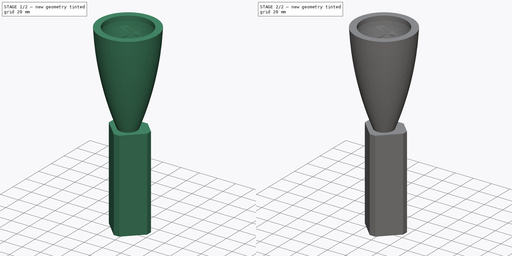
[diagram: build sequence overview — one tinted view per stage of 2, left to right]
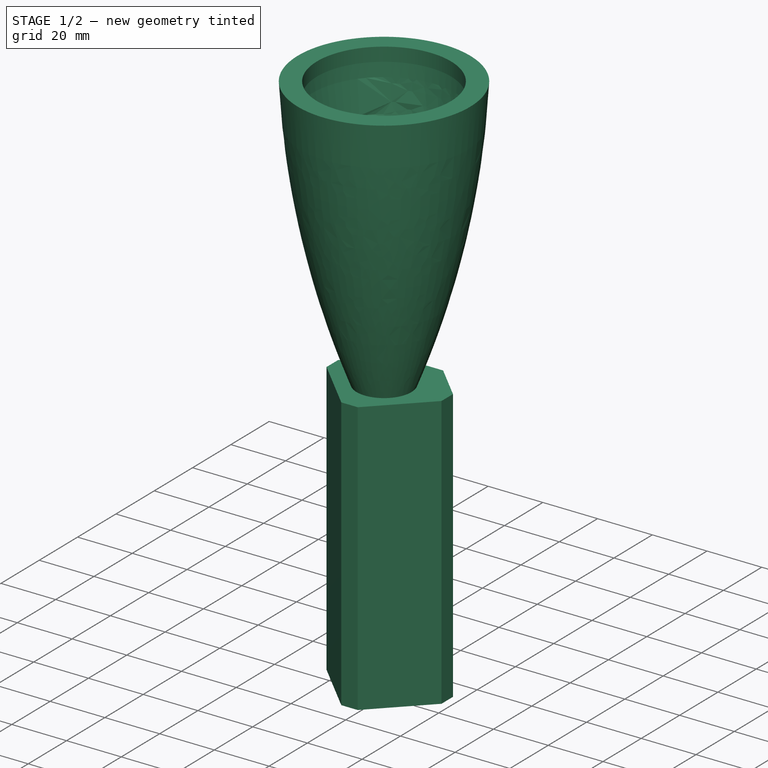
[diagram: stage 1 of 2 — iso view after this stage's code; geometry added in this stage tinted green]
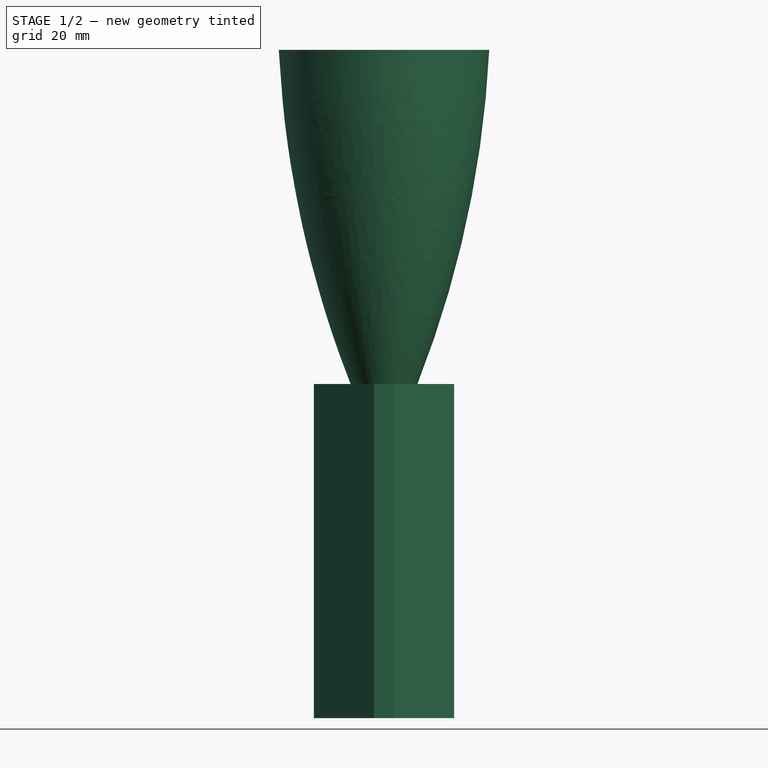
[diagram: stage 1 of 2 — front view after this stage's code; geometry added in this stage tinted green]
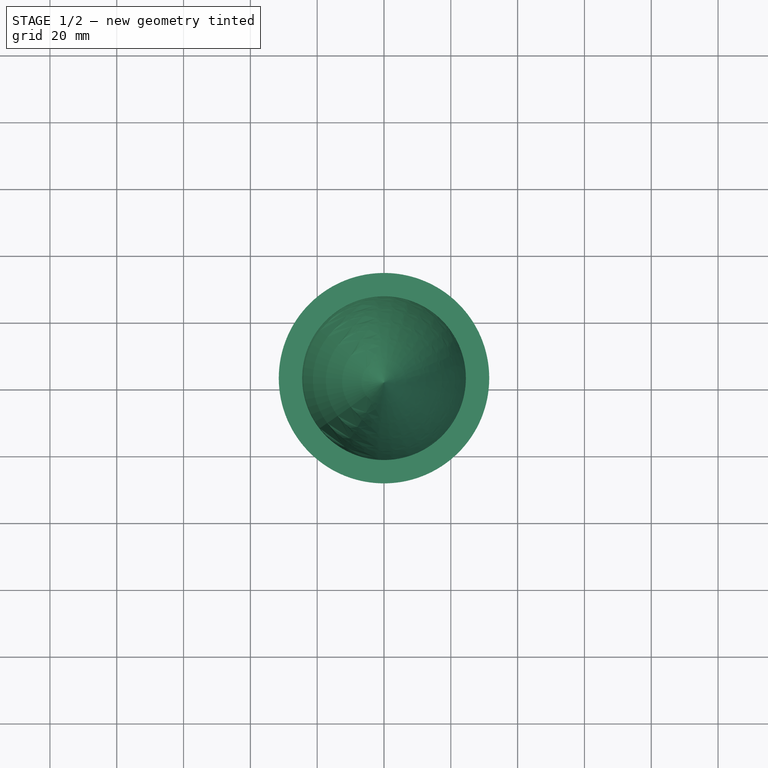
[diagram: stage 1 of 2 — top view after this stage's code; geometry added in this stage tinted green]
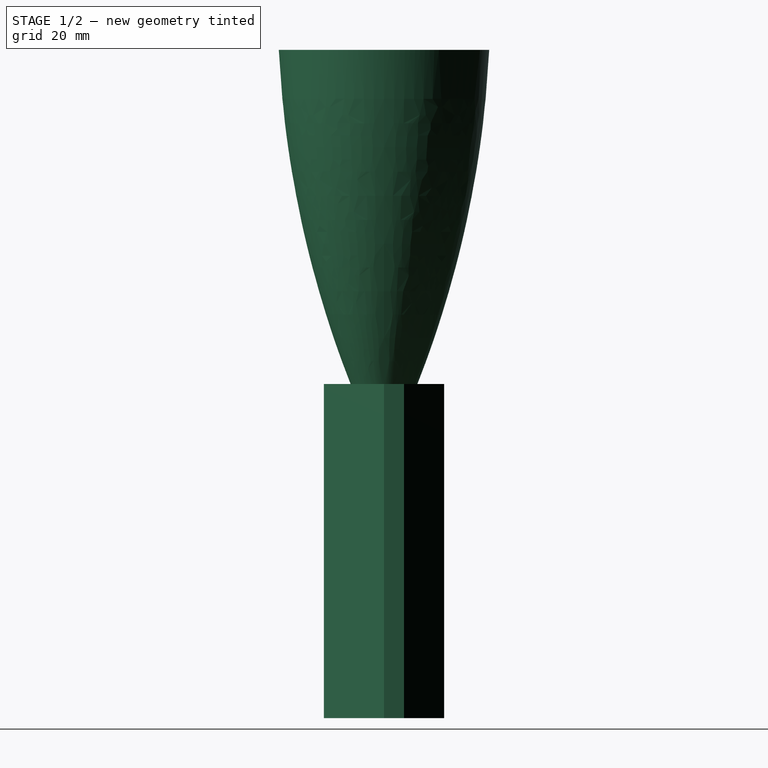
[diagram: stage 1 of 2 — right view after this stage's code; geometry added in this stage tinted green]
FCSTD DOCUMENT  (FreeCAD 0.18.4R)
Label: part15
License: All rights reserved
LicenseURL: http://en.wikipedia.org/wiki/All_rights_reserved
objects: Sketcher::SketchObject×3, PartDesign::Revolution×1, PartDesign::Pad×1, PartDesign::Hole×1, PartDesign::Body×1
note: 10 computed .brp shape members not serialized (recipe doc carries the construction recipe); baked Part::Feature solids carry a one-line shape summary decoded from their .brp

FEATURE [Sketcher::SketchObject] Sketch
  MapMode = 5
  Placement = pos=(0,0,0) rot=(1,0,0;1.5708rad)
  Support = -> [XZ_Plane]
  sketch-geometry (9):
    g0: ArcOfCircle CenterX=-284.838 CenterY=115.701 CenterZ=0 NormalX=0 NormalY=0 NormalZ=1 AngleXU=0 Radius=316.728 StartAngle=5.90923 EndAngle=6.23359
    g1: ArcOfCircle CenterX=-98.1631 CenterY=103.289 CenterZ=0 NormalX=0 NormalY=0 NormalZ=1 AngleXU=0 Radius=124.938 StartAngle=5.6162 EndAngle=6.21679
    g2: LineSegment StartX=-1.42e-14 StartY=26 StartZ=0 EndX=-1.42e-14 EndY=0 EndZ=0
    g3: LineSegment StartX=-1.42e-14 StartY=0 StartZ=0 EndX=10 EndY=0 EndZ=0
    g4: LineSegment StartX=31.5 StartY=100 StartZ=0 EndX=24.5 EndY=100 EndZ=0
    g5: LineSegment StartX=24.5 StartY=100 StartZ=0 EndX=24.5 EndY=95 EndZ=0
    g6: LineSegment StartX=24.5 StartY=95 StartZ=0 EndX=26.5 EndY=95 EndZ=0
    g7: GeomPoint X=25 Y=50 Z=0
    g8: LineSegment [constr] StartX=26.5 StartY=95 StartZ=0 EndX=31.1916 EndY=94.688 EndZ=0
  constraints (27):
    c: Vertical(g2)
    c: Coincident(g2,g3)
    c: Horizontal(g3)
    c: Horizontal(g4)
    c: Coincident(g4,g5)
    c: Coincident(g0,g4)
    c: Coincident(g0,g3)
    c: Coincident(g6,g1)
    c: Coincident(g1,g2)
    c: Vertical(g5)
    c: Horizontal(g6)
    c: Coincident(g5,g6)
    c: DistanceX(g3,g3) = 10
    c: DistanceY(g0,g0) = 100
    c: Coincident(g-1,g2)
    c: DistanceX(g2,g0) = 31.5
    c: DistanceX(g4,g4) = 7
    c: DistanceY(g5,g5) = 5
    c: DistanceY(g2,g2) = 26
    c: PointOnObject(g7,g0)
    c: DistanceX(g2,g7) = 25
    c: DistanceY(g2,g7) = 50
    c: DistanceX(g6,g6) = 2
    c: Coincident(g8,g1)
    c: Perpendicular(g1,g8)
    c: Perpendicular(g0,g8)
    c: PointOnObject(g8,g0)
FEATURE [PartDesign::Revolution] Revolution
  Angle = 360
  Axis = (-3e-16,3e-16,1)
  Base = (0,0,0)
  Placement = pos=(0,0,0) rot=(1,0,0;1.5708rad)
  Profile = -> Sketch
  ReferenceAxis = -> Z_Axis
  Reversed = true
FEATURE [Sketcher::SketchObject] Sketch001
  MapMode = 5
  Placement = pos=(0,0,0) rot=(1,0,0;3.14159rad)
  Support = -> [Revolution]
  sketch-geometry (8):
    g0: LineSegment StartX=-3 StartY=18 StartZ=0 EndX=-21 EndY=0 EndZ=0
    g1: LineSegment StartX=-21 StartY=0 StartZ=0 EndX=-21 EndY=-6 EndZ=0
    g2: LineSegment StartX=-21 StartY=-6 StartZ=0 EndX=-9 EndY=-18 EndZ=0
    g3: LineSegment StartX=-9 StartY=-18 StartZ=0 EndX=9 EndY=-18 EndZ=0
    g4: LineSegment StartX=9 StartY=-18 StartZ=0 EndX=21 EndY=-6 EndZ=0
    g5: LineSegment StartX=21 StartY=-6 StartZ=0 EndX=21 EndY=0 EndZ=0
    g6: LineSegment StartX=21 StartY=0 StartZ=0 EndX=3 EndY=18 EndZ=0
    g7: LineSegment StartX=3 StartY=18 StartZ=0 EndX=-3 EndY=18 EndZ=0
  constraints (21):
    c: Coincident(g0,g1)
    c: Coincident(g1,g2)
    c: Coincident(g2,g3)
    c: Coincident(g3,g4)
    c: Coincident(g4,g5)
    c: Vertical(g5)
    c: Coincident(g5,g6)
    c: Coincident(g6,g7)
    c: Coincident(g7,g0)
    c: Symmetric(g0,g6,g-2)
    c: Symmetric(g0,g5,g-2)
    c: Symmetric(g1,g4,g-2)
    c: Symmetric(g2,g3,g-2)
    c: PointOnObject(g5,g-1)
    c: Equal(g7,g1)
    c: Equal(g7,g5)
    c: Angle(g0,g7) = 2.35619
    c: Angle(g3,g2) = 2.35619
    c: DistanceX(g3,g3) = 18
    c: DistanceX(g0,g5) = 42
    c: DistanceY(g5,g5) = 6
FEATURE [PartDesign::Pad] Pad
  BaseFeature = -> Revolution
  Length = 100
  Length2 = 100
  Placement = pos=(0,0,0) rot=(1,0,0;1.5708rad)
  Profile = -> Sketch001
  Type = 0
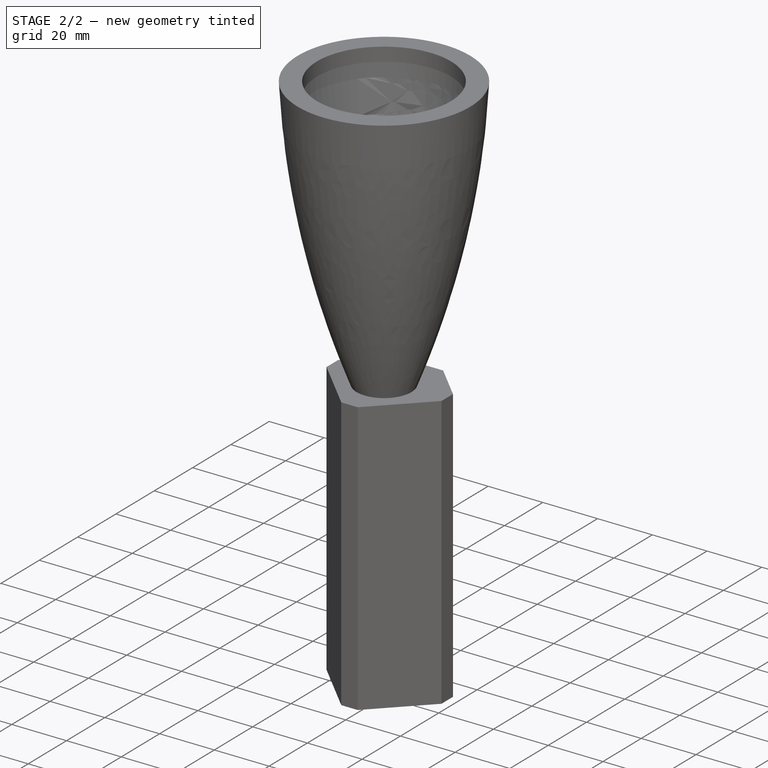
[diagram: stage 2 of 2 — iso view after this stage's code; geometry added in this stage tinted green]
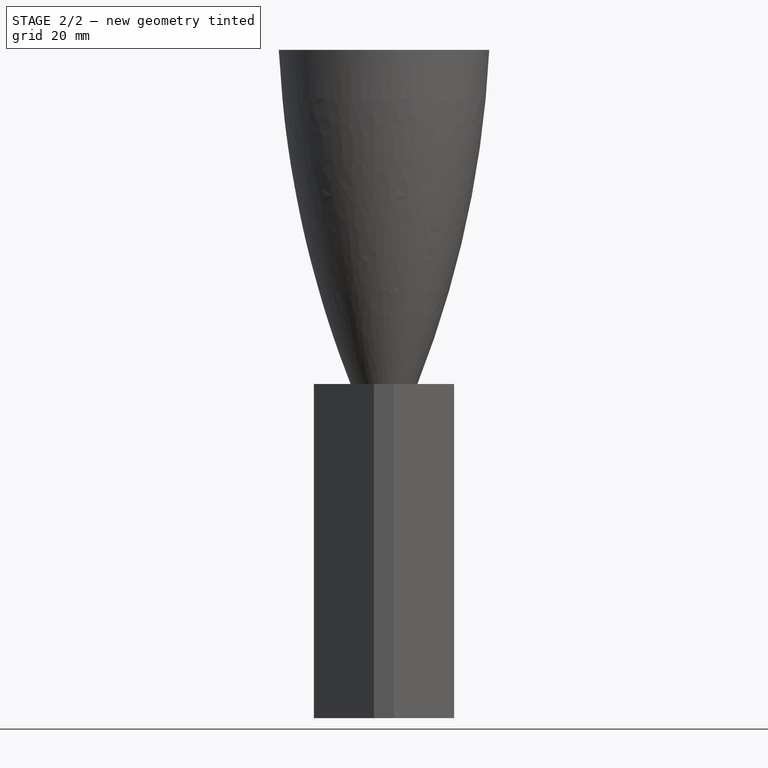
[diagram: stage 2 of 2 — front view after this stage's code; geometry added in this stage tinted green]
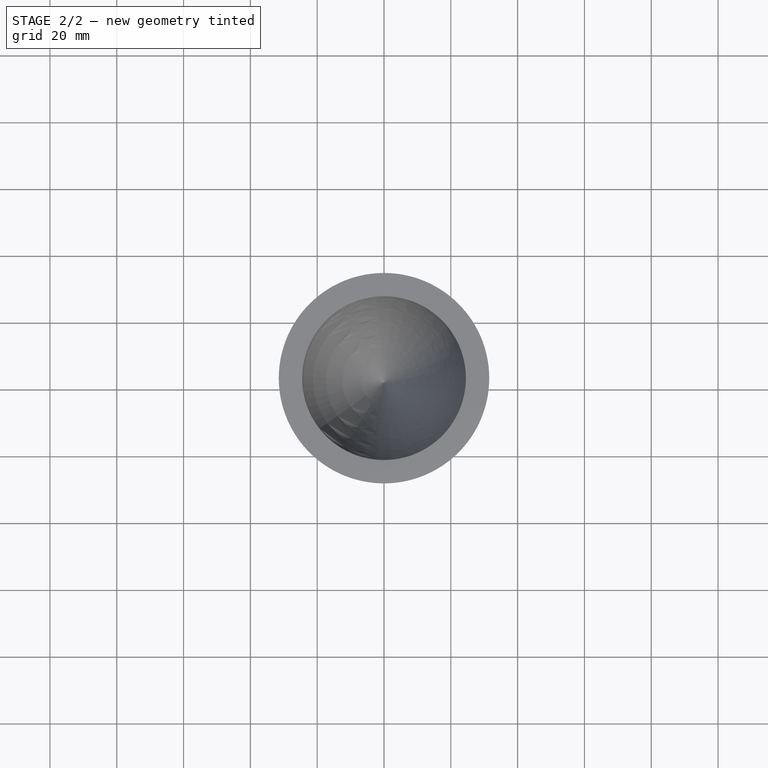
[diagram: stage 2 of 2 — top view after this stage's code; geometry added in this stage tinted green]
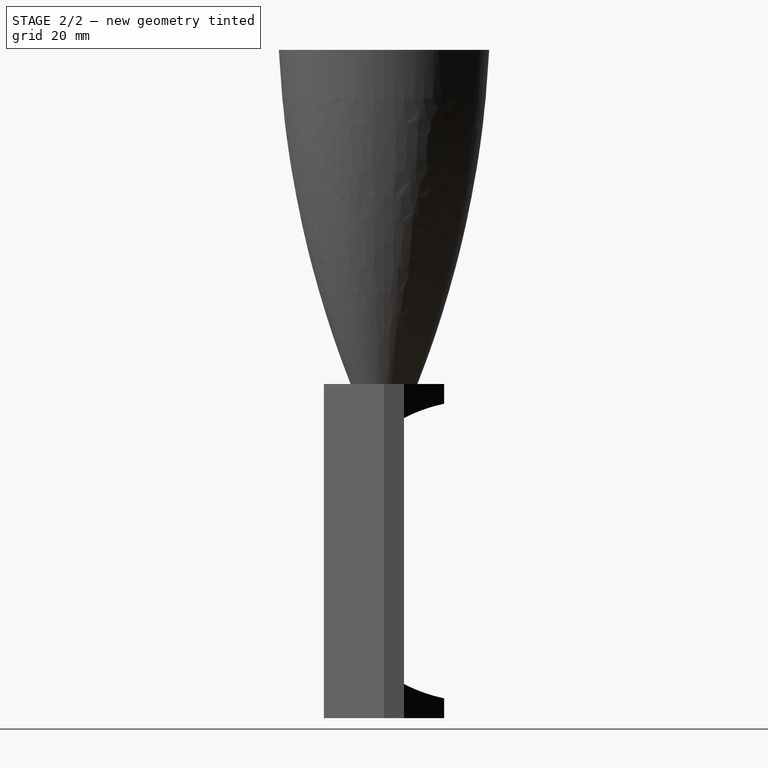
[diagram: stage 2 of 2 — right view after this stage's code; geometry added in this stage tinted green]
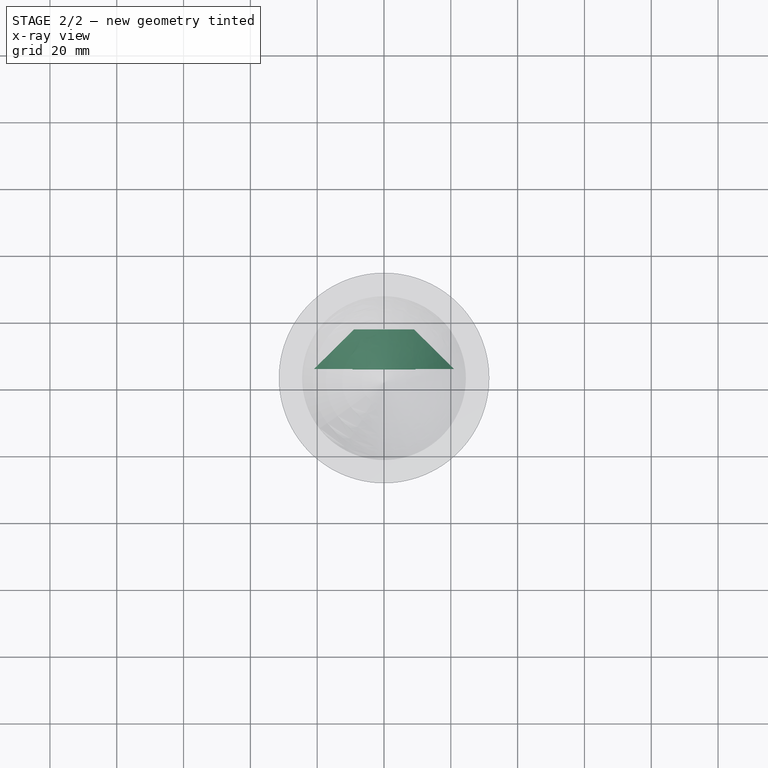
[diagram: stage 2 of 2 — x-ray composite at the top view; earlier geometry ghosted, this stage's added geometry solid]
FEATURE [Sketcher::SketchObject] Sketch002
  MapMode = 5
  Placement = pos=(0,18,-1.61e-14) rot=(-1,0,0;1.5708rad)
  Support = -> [Pad]
  sketch-geometry (1):
    g0: Circle CenterX=0 CenterY=50 CenterZ=0 NormalX=0 NormalY=0 NormalZ=1 AngleXU=0 Radius=11.8086
  constraints (2):
    c: PointOnObject(g0,g-2)
    c: DistanceY(g-1,g0) = 50
FEATURE [PartDesign::Hole] Hole
  BaseFeature = -> Pad
  Depth = 12
  DepthType = 0
  Diameter = 90
  DrillPoint = 0
  DrillPointAngle = 118
  HoleCutCountersinkAngle = 90
  HoleCutDepth = 0
  HoleCutDiameter = 0
  HoleCutType = 0
  ModelActualThread = false
  Placement = pos=(0,0,0) rot=(1,0,0;1.5708rad)
  Profile = -> Sketch002
  Tapered = false
  TaperedAngle = 90
  ThreadAngle = 0
  ThreadClass = 0
  ThreadCutOffInner = 0
  ThreadCutOffOuter = 0
  ThreadDirection = 0
  ThreadFit = 0
  ThreadPitch = 0
  ThreadSize = 0
  ThreadType = 0
  Threaded = false
FEATURE [PartDesign::Body] Body
  Group = -> [Sketch,Revolution,Sketch001,Pad,Sketch002,Hole]
  Origin = -> Origin
  Placement = pos=(0,0,-26) rot=(0,0,1;0rad)
  Tip = -> Hole
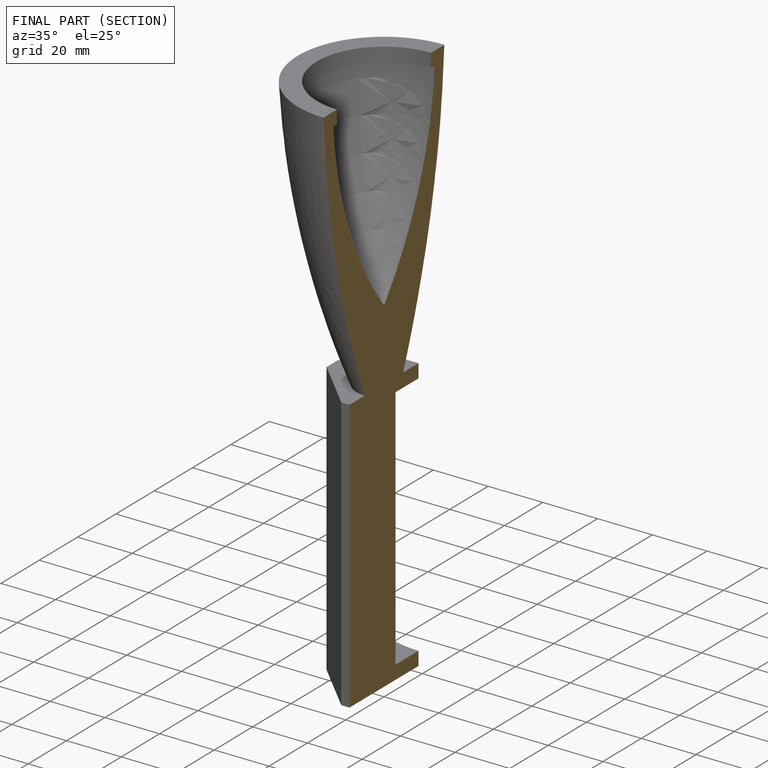
[diagram: finished part — half-section view (interior)]
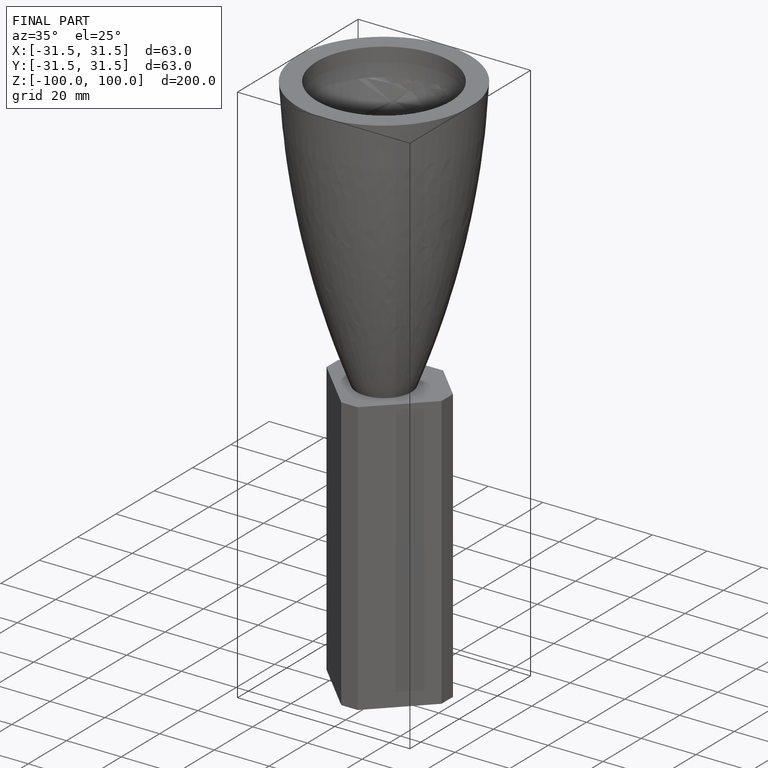
[diagram: finished part — iso view with bounding-box wireframe]
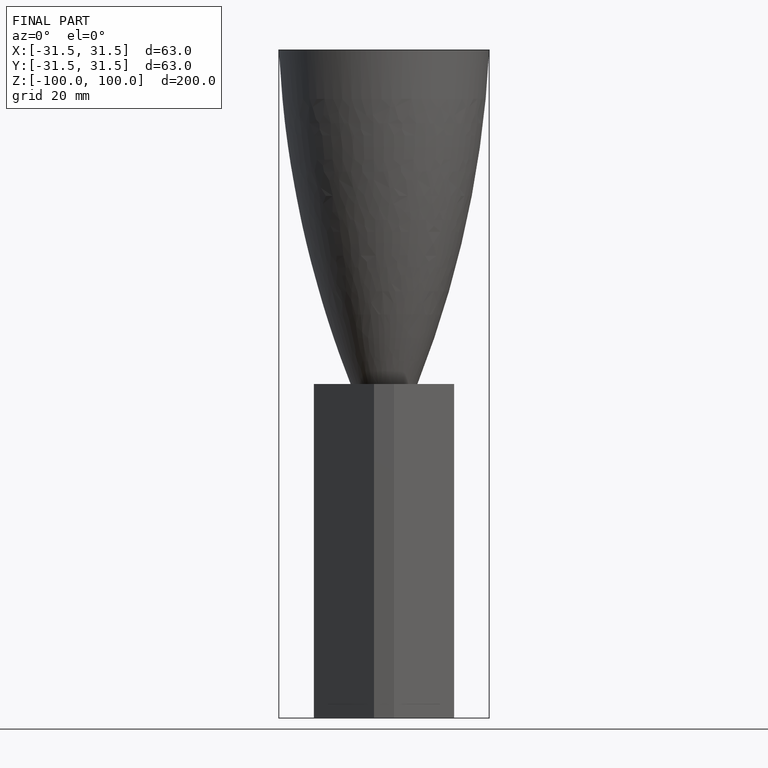
[diagram: finished part — front view with bounding-box wireframe]
